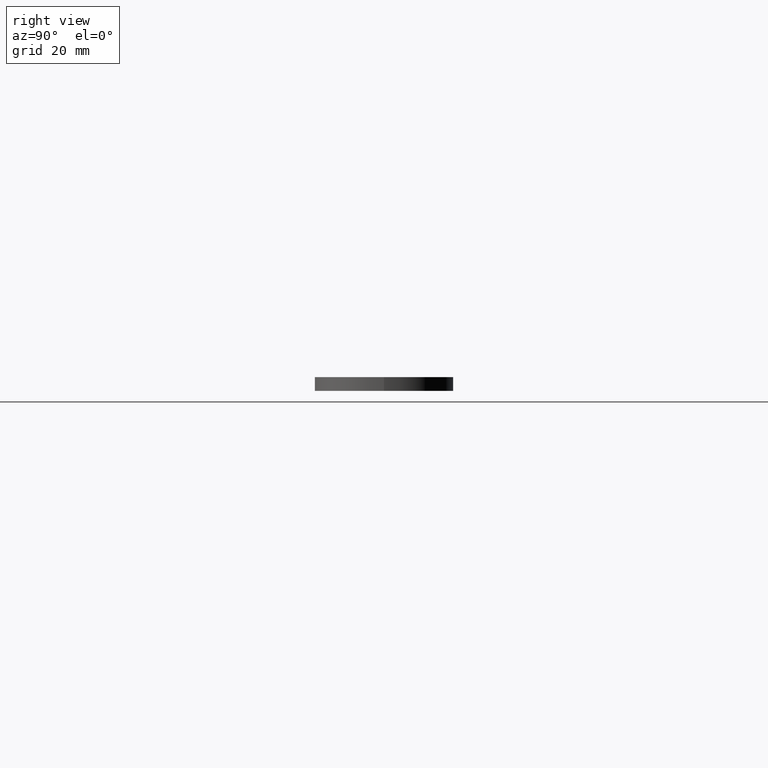
[diagram: clean part render]
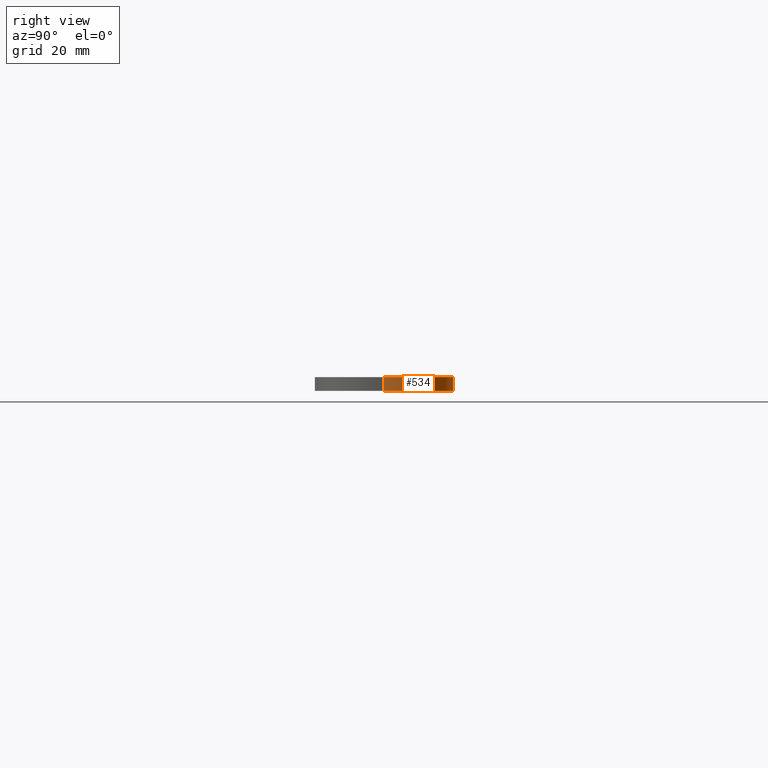
[diagram: same view with one face highlighted and labeled with its STEP entity id]
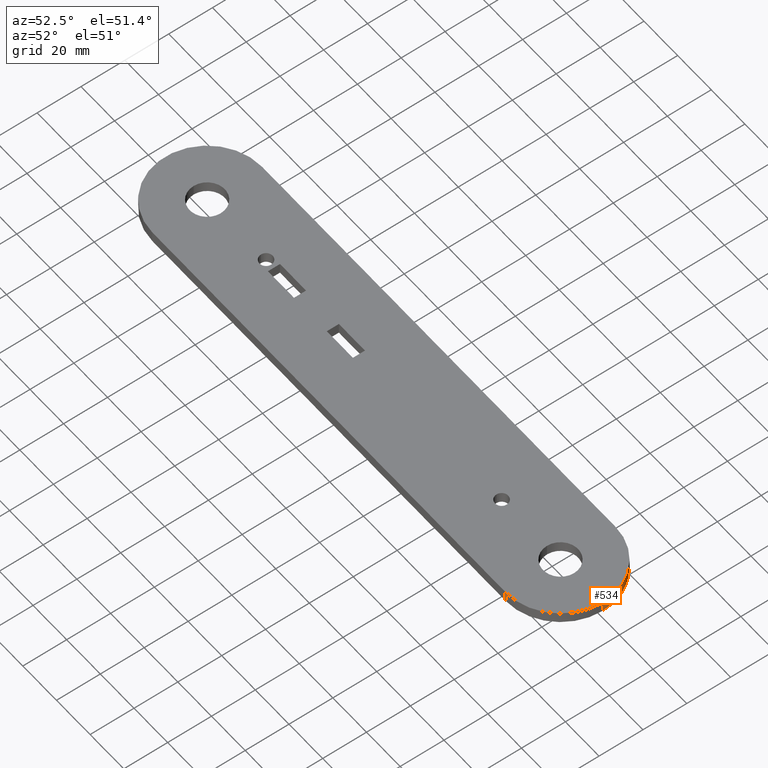
[diagram: same view with one face highlighted and labeled with its STEP entity id]
A machine part, right view. The second image highlights one B-rep face of the part: STEP entity #534.
A second angle (auxiliary view) of the same face is appended — the face is thin or edge-on in the first view.
In plain terms, the highlighted cylindrical surface (partial cylindrical patch) has radius 25 mm, axis along (0, 0, 1).
Its self-contained STEP definition (entity closure, byte-faithful):
#31 = DIRECTION ( 'NONE',  ( 1.000000000000000000, 0.000000000000000000, 0.000000000000000000 ) ) ;
#70 = VERTEX_POINT ( 'NONE', #752 ) ;
#141 = VERTEX_POINT ( 'NONE', #303 ) ;
#223 = CARTESIAN_POINT ( 'NONE',  ( 104.9999999999999858, 3.857637417314161584E-14, 0.000000000000000000 ) ) ;
#227 = CIRCLE ( 'NONE', #700, 25.00000000000004974 ) ;
#231 = ORIENTED_EDGE ( 'NONE', *, *, #671, .T. ) ;
#248 = DIRECTION ( 'NONE',  ( 0.000000000000000000, 0.000000000000000000, 1.000000000000000000 ) ) ;
#290 = EDGE_CURVE ( 'NONE', #436, #70, #450, .T. ) ;
#293 = CYLINDRICAL_SURFACE ( 'NONE', #607, 25.00000000000004974 ) ;
#303 = CARTESIAN_POINT ( 'NONE',  ( 104.9999999999999858, 25.00000000000008171, -5.000000000000000000 ) ) ;
#323 = ORIENTED_EDGE ( 'NONE', *, *, #290, .F. ) ;
#338 = EDGE_CURVE ( 'NONE', #436, #141, #227, .T. ) ;
#339 = ORIENTED_EDGE ( 'NONE', *, *, #523, .F. ) ;
#361 = CIRCLE ( 'NONE', #797, 25.00000000000004974 ) ;
#381 = CARTESIAN_POINT ( 'NONE',  ( 130.0000000000000284, 3.857637417314161584E-14, -5.000000000000000000 ) ) ;
#420 = VECTOR ( 'NONE', #434, 1000.000000000000000 ) ;
#434 = DIRECTION ( 'NONE',  ( 0.000000000000000000, 0.000000000000000000, 1.000000000000000000 ) ) ;
#436 = VERTEX_POINT ( 'NONE', #719 ) ;
#442 = CARTESIAN_POINT ( 'NONE',  ( 104.9999999999999858, 3.857637417314161584E-14, -5.000000000000000000 ) ) ;
#450 = LINE ( 'NONE', #381, #673 ) ;
#454 = DIRECTION ( 'NONE',  ( 1.000000000000000000, 0.000000000000000000, 0.000000000000000000 ) ) ;
#467 = VERTEX_POINT ( 'NONE', #723 ) ;
#481 = DIRECTION ( 'NONE',  ( 1.000000000000000000, 0.000000000000000000, 0.000000000000000000 ) ) ;
#483 = EDGE_LOOP ( 'NONE', ( #323, #520, #231, #339 ) ) ;
#484 = DIRECTION ( 'NONE',  ( 0.000000000000000000, 0.000000000000000000, 1.000000000000000000 ) ) ;
#496 = DIRECTION ( 'NONE',  ( 0.000000000000000000, 0.000000000000000000, 1.000000000000000000 ) ) ;
#500 = CARTESIAN_POINT ( 'NONE',  ( 104.9999999999999858, 25.00000000000008171, -5.000000000000000000 ) ) ;
#520 = ORIENTED_EDGE ( 'NONE', *, *, #338, .T. ) ;
#523 = EDGE_CURVE ( 'NONE', #70, #467, #361, .T. ) ;
#534 = ADVANCED_FACE ( 'NONE', ( #813 ), #293, .T. ) ;
#607 = AXIS2_PLACEMENT_3D ( 'NONE', #817, #496, #31 ) ;
#635 = DIRECTION ( 'NONE',  ( 0.000000000000000000, 0.000000000000000000, 1.000000000000000000 ) ) ;
#671 = EDGE_CURVE ( 'NONE', #141, #467, #697, .T. ) ;
#673 = VECTOR ( 'NONE', #248, 1000.000000000000000 ) ;
#697 = LINE ( 'NONE', #500, #420 ) ;
#700 = AXIS2_PLACEMENT_3D ( 'NONE', #442, #635, #454 ) ;
#719 = CARTESIAN_POINT ( 'NONE',  ( 130.0000000000000284, 3.857637417314161584E-14, -5.000000000000000000 ) ) ;
#723 = CARTESIAN_POINT ( 'NONE',  ( 104.9999999999999858, 25.00000000000008171, 0.000000000000000000 ) ) ;
#752 = CARTESIAN_POINT ( 'NONE',  ( 130.0000000000000284, 3.857637417314161584E-14, 0.000000000000000000 ) ) ;
#797 = AXIS2_PLACEMENT_3D ( 'NONE', #223, #484, #481 ) ;
#813 = FACE_OUTER_BOUND ( 'NONE', #483, .T. ) ;
#817 = CARTESIAN_POINT ( 'NONE',  ( 104.9999999999999858, 3.857637417314161584E-14, -5.000000000000000000 ) ) ;